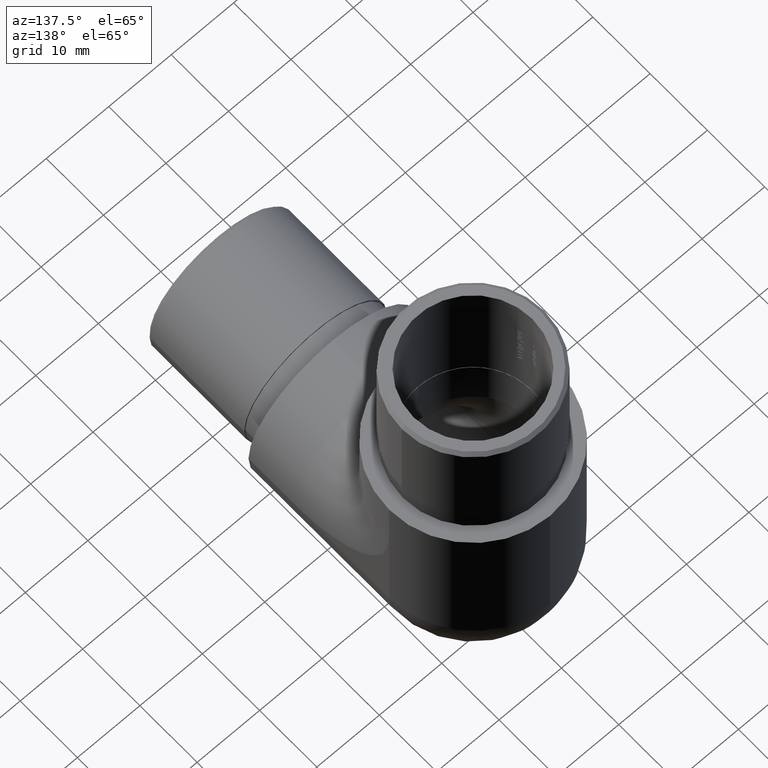
[diagram: clean part render]
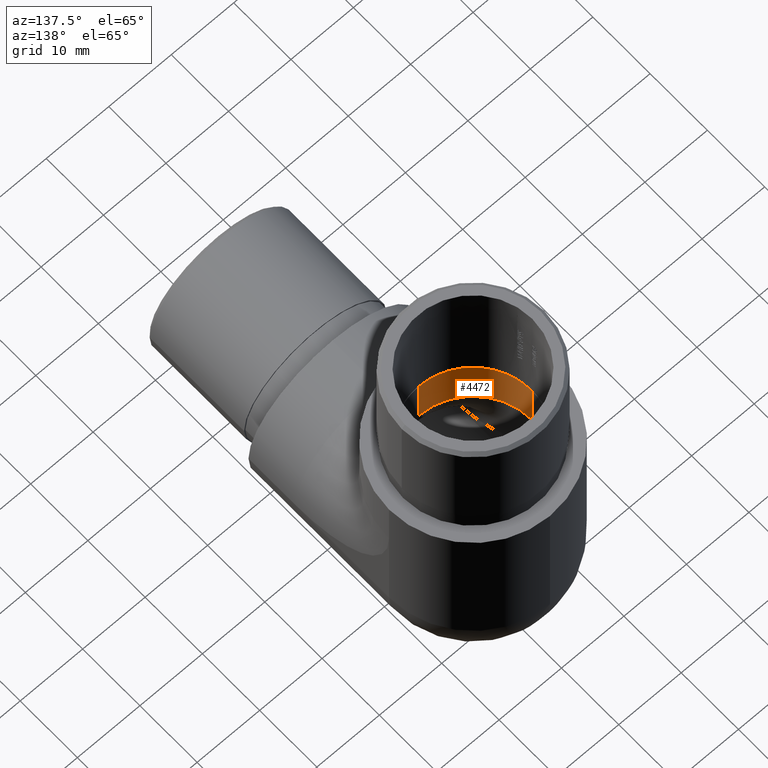
[diagram: same view with one face highlighted and labeled with its STEP entity id]
A machine part, auxiliary view. The second image highlights one B-rep face of the part: STEP entity #4472.
In plain terms, the highlighted cylindrical surface (partial cylindrical patch) has radius 9.45 mm, axis along (-0, 0, -1).
Its self-contained STEP definition (entity closure, byte-faithful):
#113 = DIRECTION ( 'NONE',  ( -6.448786156047610700E-017, 0.0000000000000000000, -1.000000000000000000 ) ) ;
#386 = CARTESIAN_POINT ( 'NONE',  ( -9.449999999999997500, 24.54999999999999700, 24.55000000000000100 ) ) ;
#402 = EDGE_CURVE ( 'NONE', #4715, #1438, #5406, .T. ) ;
#963 = ORIENTED_EDGE ( 'NONE', *, *, #6727, .T. ) ;
#1028 = AXIS2_PLACEMENT_3D ( 'NONE', #11430, #9223, #6015 ) ;
#1438 = VERTEX_POINT ( 'NONE', #8655 ) ;
#2117 = LINE ( 'NONE', #11717, #2932 ) ;
#2283 = CARTESIAN_POINT ( 'NONE',  ( 1.734723475976807100E-015, 24.54999999999999700, 24.55000000000000100 ) ) ;
#2444 = AXIS2_PLACEMENT_3D ( 'NONE', #9189, #9560, #7659 ) ;
#2932 = VECTOR ( 'NONE', #113, 1000.000000000000000 ) ;
#4472 = ADVANCED_FACE ( 'NONE', ( #5320 ), #6314, .F. ) ;
#4715 = VERTEX_POINT ( 'NONE', #386 ) ;
#5320 = FACE_OUTER_BOUND ( 'NONE', #7948, .T. ) ;
#5406 = CIRCLE ( 'NONE', #8853, 9.449999999999999300 ) ;
#5612 = VERTEX_POINT ( 'NONE', #6475 ) ;
#5821 = EDGE_CURVE ( 'NONE', #1438, #5612, #11642, .T. ) ;
#5870 = VERTEX_POINT ( 'NONE', #11580 ) ;
#6015 = DIRECTION ( 'NONE',  ( -1.000000000000000000, 0.0000000000000000000, 0.0000000000000000000 ) ) ;
#6314 = CYLINDRICAL_SURFACE ( 'NONE', #2444, 9.449999999999999300 ) ;
#6475 = CARTESIAN_POINT ( 'NONE',  ( 2.948308635128323400E-015, 15.10000000000000000, 16.44999999999999900 ) ) ;
#6727 = EDGE_CURVE ( 'NONE', #5612, #5870, #10624, .T. ) ;
#7193 = DIRECTION ( 'NONE',  ( -6.448786156047610700E-017, 0.0000000000000000000, -1.000000000000000000 ) ) ;
#7659 = DIRECTION ( 'NONE',  ( -1.000000000000000000, 0.0000000000000000000, 0.0000000000000000000 ) ) ;
#7948 = EDGE_LOOP ( 'NONE', ( #12656, #9704, #963, #11643 ) ) ;
#8265 = CARTESIAN_POINT ( 'NONE',  ( -3.470660313768180900E-015, 15.10000000000000000, -13.44999999999999900 ) ) ;
#8457 = VECTOR ( 'NONE', #7193, 1000.000000000000000 ) ;
#8655 = CARTESIAN_POINT ( 'NONE',  ( 3.470660313768180900E-015, 15.10000000000000000, 24.55000000000000100 ) ) ;
#8695 = DIRECTION ( 'NONE',  ( -1.000000000000000000, 0.0000000000000000000, 0.0000000000000000000 ) ) ;
#8853 = AXIS2_PLACEMENT_3D ( 'NONE', #2283, #9723, #8695 ) ;
#9189 = CARTESIAN_POINT ( 'NONE',  ( 1.734723475976807100E-015, 24.54999999999999700, 24.55000000000000100 ) ) ;
#9223 = DIRECTION ( 'NONE',  ( -6.448786156047610700E-017, -6.123233995736766000E-017, -1.000000000000000000 ) ) ;
#9560 = DIRECTION ( 'NONE',  ( -6.448786156047610700E-017, 0.0000000000000000000, -1.000000000000000000 ) ) ;
#9704 = ORIENTED_EDGE ( 'NONE', *, *, #5821, .T. ) ;
#9723 = DIRECTION ( 'NONE',  ( -0.0000000000000000000, -0.0000000000000000000, 1.000000000000000000 ) ) ;
#10624 = CIRCLE ( 'NONE', #1028, 9.449999999999999300 ) ;
#11430 = CARTESIAN_POINT ( 'NONE',  ( 1.734723475976807100E-015, 24.54999999999999700, 16.44999999999999900 ) ) ;
#11580 = CARTESIAN_POINT ( 'NONE',  ( -9.449999999999997500, 24.54999999999999700, 16.44999999999999900 ) ) ;
#11642 = LINE ( 'NONE', #8265, #8457 ) ;
#11643 = ORIENTED_EDGE ( 'NONE', *, *, #12487, .F. ) ;
#11717 = CARTESIAN_POINT ( 'NONE',  ( -9.449999999999997500, 24.54999999999999700, 24.55000000000000100 ) ) ;
#12487 = EDGE_CURVE ( 'NONE', #4715, #5870, #2117, .T. ) ;
#12656 = ORIENTED_EDGE ( 'NONE', *, *, #402, .T. ) ;